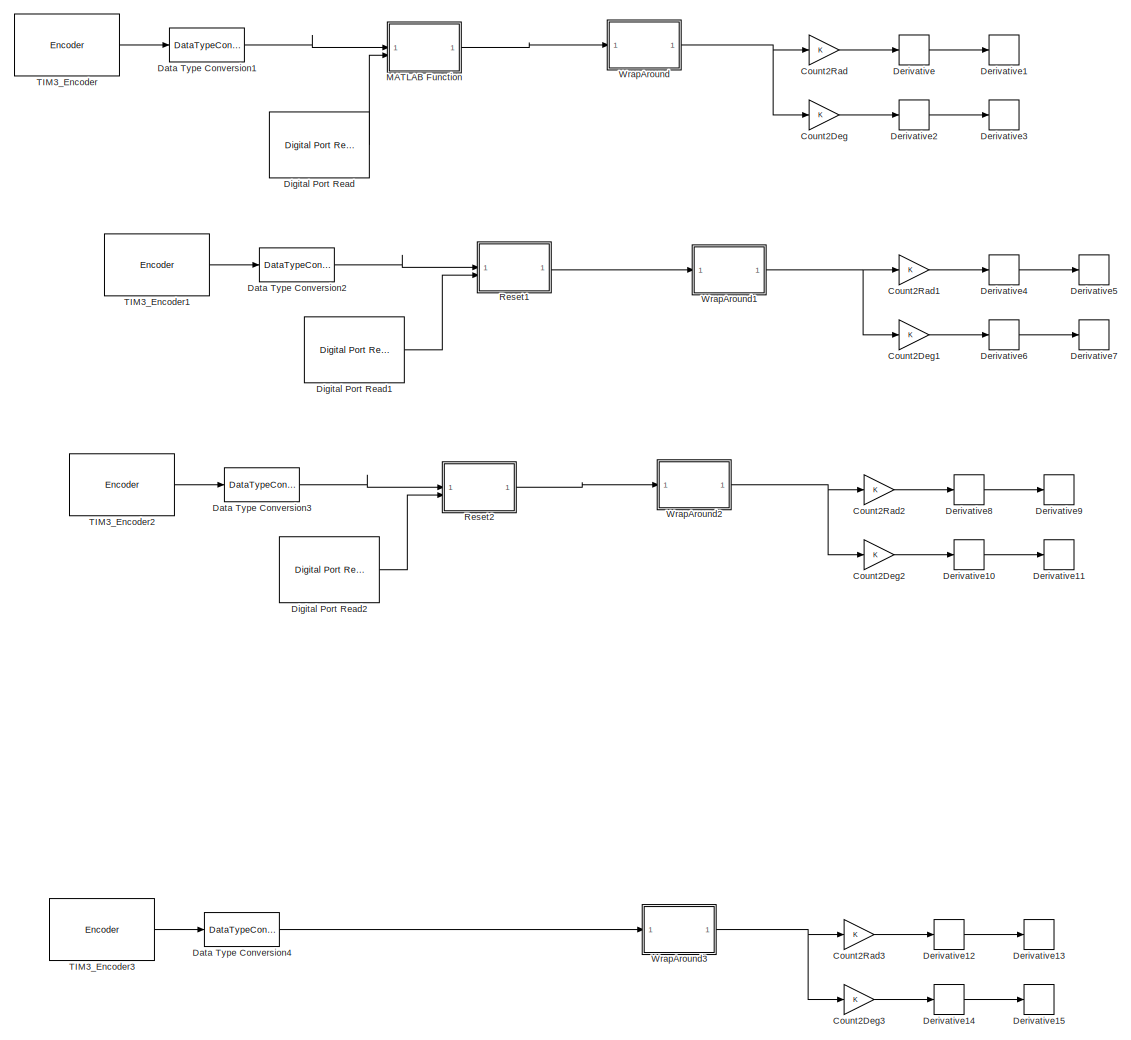
[diagram: root canvas - part 1/1, most of the canvas]
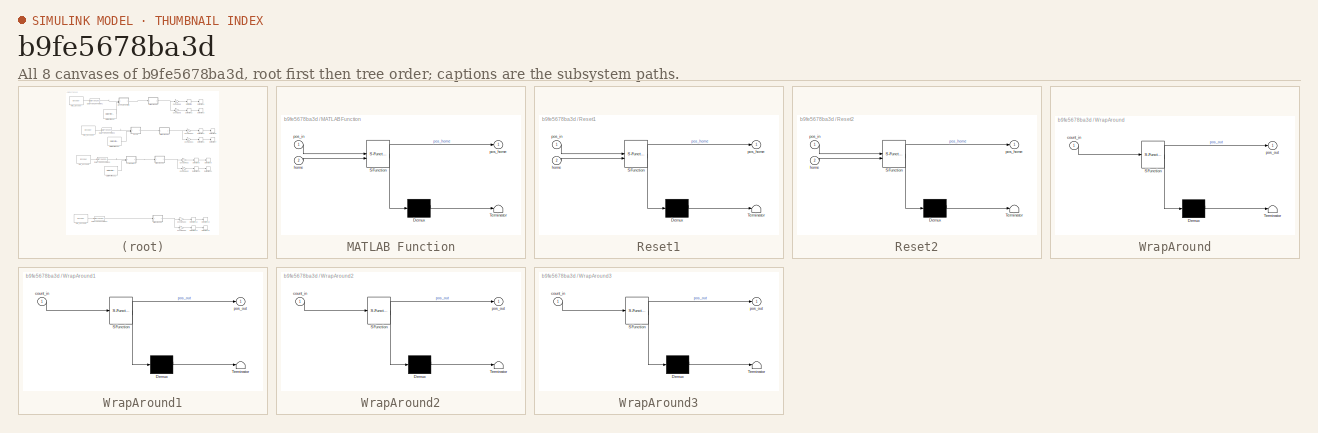
[diagram: thumbnail index - all 8 canvases of the model, root first then tree order]
MODEL slx_b9fe5678ba3d
KIND model
BLOCK [Gain] Count2Deg
BLOCK [Gain] Count2Deg1
BLOCK [Gain] Count2Deg2
BLOCK [Gain] Count2Deg3
  Commented = on
BLOCK [Gain] Count2Rad
BLOCK [Gain] Count2Rad1
BLOCK [Gain] Count2Rad2
BLOCK [Gain] Count2Rad3
  Commented = on
BLOCK [DataTypeConversion] Data Type Conversion1
  OutDataTypeStr = double
  RndMeth = Floor
  SaturateOnIntegerOverflow = off
BLOCK [DataTypeConversion] Data Type Conversion2
  OutDataTypeStr = double
  RndMeth = Floor
  SaturateOnIntegerOverflow = off
BLOCK [DataTypeConversion] Data Type Conversion3
  OutDataTypeStr = double
  RndMeth = Floor
  SaturateOnIntegerOverflow = off
BLOCK [DataTypeConversion] Data Type Conversion4
  Commented = on
  OutDataTypeStr = double
  RndMeth = Floor
  SaturateOnIntegerOverflow = off
BLOCK [Derivative] Derivative
BLOCK [Derivative] Derivative1
BLOCK [Derivative] Derivative10
BLOCK [Derivative] Derivative11
BLOCK [Derivative] Derivative12
  Commented = on
BLOCK [Derivative] Derivative13
  Commented = on
BLOCK [Derivative] Derivative14
  Commented = on
BLOCK [Derivative] Derivative15
  Commented = on
BLOCK [Derivative] Derivative2
BLOCK [Derivative] Derivative3
BLOCK [Derivative] Derivative4
BLOCK [Derivative] Derivative5
BLOCK [Derivative] Derivative6
BLOCK [Derivative] Derivative7
BLOCK [Derivative] Derivative8
BLOCK [Derivative] Derivative9
BLOCK [Reference] Digital Port Read  REF=stm32f4xxblockslib/Digital Port Read
  SourceBlock = stm32f4xxblockslib/Digital Port Read
  SourceType = stm32cube.blocks.DigitalPortRead
BLOCK [Reference] Digital Port Read1  REF=stm32f4xxblockslib/Digital Port Read
  SourceBlock = stm32f4xxblockslib/Digital Port Read
  SourceType = stm32cube.blocks.DigitalPortRead
BLOCK [Reference] Digital Port Read2  REF=stm32f4xxblockslib/Digital Port Read
  SourceBlock = stm32f4xxblockslib/Digital Port Read
  SourceType = stm32cube.blocks.DigitalPortRead
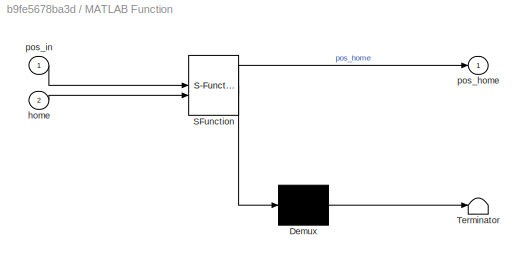
BLOCK [SubSystem] MATLAB Function
  ErrorFcn = Stateflow.Translate.translate
  PermitHierarchicalResolution = ExplicitOnly
  SFBlockType = MATLAB Function
  TreatAsAtomicUnit = on
BLOCK [Demux] MATLAB Function/ Demux 
  Outputs = 1
BLOCK [S-Function] MATLAB Function/ SFunction 
  EnableBusSupport = off
  FunctionName = sf_sfun
  PortCounts = [2 2]
  SFcnIsStateOwnerBlock = off
  SFunctionDeploymentMode = off
  Tag = Stateflow S-Function 1
BLOCK [Terminator] MATLAB Function/ Terminator 
BLOCK [Inport] MATLAB Function/home
  Port = 2
BLOCK [Outport] MATLAB Function/pos_home
BLOCK [Inport] MATLAB Function/pos_in
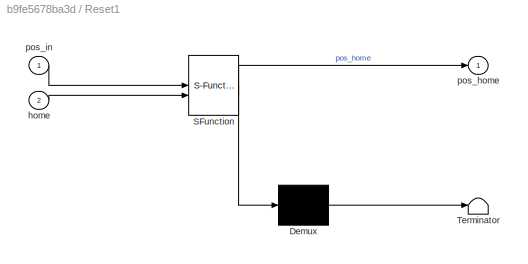
BLOCK [SubSystem] Reset1
  ErrorFcn = Stateflow.Translate.translate
  PermitHierarchicalResolution = ExplicitOnly
  SFBlockType = MATLAB Function
  TreatAsAtomicUnit = on
BLOCK [Demux] Reset1/ Demux 
  Outputs = 1
BLOCK [S-Function] Reset1/ SFunction 
  EnableBusSupport = off
  FunctionName = sf_sfun
  PortCounts = [2 2]
  SFcnIsStateOwnerBlock = off
  SFunctionDeploymentMode = off
  Tag = Stateflow S-Function 3
BLOCK [Terminator] Reset1/ Terminator 
BLOCK [Inport] Reset1/home
  Port = 2
BLOCK [Outport] Reset1/pos_home
BLOCK [Inport] Reset1/pos_in
BLOCK [SubSystem] Reset2
  ErrorFcn = Stateflow.Translate.translate
  PermitHierarchicalResolution = ExplicitOnly
  SFBlockType = MATLAB Function
  TreatAsAtomicUnit = on
BLOCK [Demux] Reset2/ Demux 
  Outputs = 1
BLOCK [S-Function] Reset2/ SFunction 
  EnableBusSupport = off
  FunctionName = sf_sfun
  PortCounts = [2 2]
  SFcnIsStateOwnerBlock = off
  SFunctionDeploymentMode = off
  Tag = Stateflow S-Function 5
BLOCK [Terminator] Reset2/ Terminator 
BLOCK [Inport] Reset2/home
  Port = 2
BLOCK [Outport] Reset2/pos_home
BLOCK [Inport] Reset2/pos_in
BLOCK [Reference] TIM3_Encoder  REF=stm32g4xxblockslib/Encoder
  SourceBlock = stm32g4xxblockslib/Encoder
  SourceType = stm32cube.blocks.EncoderBlockForG4
BLOCK [Reference] TIM3_Encoder1  REF=stm32g4xxblockslib/Encoder
  SourceBlock = stm32g4xxblockslib/Encoder
  SourceType = stm32cube.blocks.EncoderBlockForG4
BLOCK [Reference] TIM3_Encoder2  REF=stm32g4xxblockslib/Encoder
  SourceBlock = stm32g4xxblockslib/Encoder
  SourceType = stm32cube.blocks.EncoderBlockForG4
BLOCK [Reference] TIM3_Encoder3  REF=stm32g4xxblockslib/Encoder
  Commented = on
  SourceBlock = stm32g4xxblockslib/Encoder
  SourceType = stm32cube.blocks.EncoderBlockForG4
BLOCK [SubSystem] WrapAround
  ErrorFcn = Stateflow.Translate.translate
  PermitHierarchicalResolution = ExplicitOnly
  SFBlockType = MATLAB Function
  TreatAsAtomicUnit = on
BLOCK [Demux] WrapAround/ Demux 
  Outputs = 1
BLOCK [S-Function] WrapAround/ SFunction 
  EnableBusSupport = off
  FunctionName = sf_sfun
  PortCounts = [1 2]
  SFcnIsStateOwnerBlock = off
  SFunctionDeploymentMode = off
  Tag = Stateflow S-Function 2
BLOCK [Terminator] WrapAround/ Terminator 
BLOCK [Inport] WrapAround/count_in
BLOCK [Outport] WrapAround/pos_out
BLOCK [SubSystem] WrapAround1
  ErrorFcn = Stateflow.Translate.translate
  PermitHierarchicalResolution = ExplicitOnly
  SFBlockType = MATLAB Function
  TreatAsAtomicUnit = on
BLOCK [Demux] WrapAround1/ Demux 
  Outputs = 1
BLOCK [S-Function] WrapAround1/ SFunction 
  EnableBusSupport = off
  FunctionName = sf_sfun
  PortCounts = [1 2]
  SFcnIsStateOwnerBlock = off
  SFunctionDeploymentMode = off
  Tag = Stateflow S-Function 4
BLOCK [Terminator] WrapAround1/ Terminator 
BLOCK [Inport] WrapAround1/count_in
BLOCK [Outport] WrapAround1/pos_out
BLOCK [SubSystem] WrapAround2
  ErrorFcn = Stateflow.Translate.translate
  PermitHierarchicalResolution = ExplicitOnly
  SFBlockType = MATLAB Function
  TreatAsAtomicUnit = on
BLOCK [Demux] WrapAround2/ Demux 
  Outputs = 1
BLOCK [S-Function] WrapAround2/ SFunction 
  EnableBusSupport = off
  FunctionName = sf_sfun
  PortCounts = [1 2]
  SFcnIsStateOwnerBlock = off
  SFunctionDeploymentMode = off
  Tag = Stateflow S-Function 6
BLOCK [Terminator] WrapAround2/ Terminator 
BLOCK [Inport] WrapAround2/count_in
BLOCK [Outport] WrapAround2/pos_out
BLOCK [SubSystem] WrapAround3
  Commented = on
  ErrorFcn = Stateflow.Translate.translate
  PermitHierarchicalResolution = ExplicitOnly
  SFBlockType = MATLAB Function
  TreatAsAtomicUnit = on
BLOCK [Demux] WrapAround3/ Demux 
  Outputs = 1
BLOCK [S-Function] WrapAround3/ SFunction 
  EnableBusSupport = off
  FunctionName = sf_sfun
  PortCounts = [1 2]
  SFcnIsStateOwnerBlock = off
  SFunctionDeploymentMode = off
  Tag = Stateflow S-Function 8
BLOCK [Terminator] WrapAround3/ Terminator 
BLOCK [Inport] WrapAround3/count_in
BLOCK [Outport] WrapAround3/pos_out
LINE Count2Deg1:1 -> Derivative6:1
LINE Count2Deg2:1 -> Derivative10:1
LINE Count2Deg3:1 -> Derivative14:1
LINE Count2Deg:1 -> Derivative2:1
LINE Count2Rad1:1 -> Derivative4:1
LINE Count2Rad2:1 -> Derivative8:1
LINE Count2Rad3:1 -> Derivative12:1
LINE Count2Rad:1 -> Derivative:1
LINE Data Type Conversion1:1 -> MATLAB Function:1
LINE Data Type Conversion2:1 -> Reset1:1
LINE Data Type Conversion3:1 -> Reset2:1
LINE Data Type Conversion4:1 -> WrapAround3:1
LINE Derivative10:1 -> Derivative11:1
LINE Derivative12:1 -> Derivative13:1
LINE Derivative14:1 -> Derivative15:1
LINE Derivative2:1 -> Derivative3:1
LINE Derivative4:1 -> Derivative5:1
LINE Derivative6:1 -> Derivative7:1
LINE Derivative8:1 -> Derivative9:1
LINE Derivative:1 -> Derivative1:1
LINE Digital Port Read1:1 -> Reset1:2
LINE Digital Port Read2:1 -> Reset2:2
LINE Digital Port Read:1 -> MATLAB Function:2
LINE MATLAB Function:1 -> WrapAround:1
LINE Reset1:1 -> WrapAround1:1
LINE Reset2:1 -> WrapAround2:1
LINE TIM3_Encoder1:1 -> Data Type Conversion2:1
LINE TIM3_Encoder2:1 -> Data Type Conversion3:1
LINE TIM3_Encoder3:1 -> Data Type Conversion4:1
LINE TIM3_Encoder:1 -> Data Type Conversion1:1
NET WrapAround1:1 -> Count2Deg1:1, Count2Rad1:1
NET WrapAround2:1 -> Count2Deg2:1, Count2Rad2:1
NET WrapAround3:1 -> Count2Deg3:1, Count2Rad3:1
NET WrapAround:1 -> Count2Deg:1, Count2Rad:1
note: NET lines group one-source signal fan-out (src -> all destinations, sorted); 1:1 wires keep LINE
CHART WrapAround states=1 transitions=1
  STATE_LABEL 'eML_blk_kernel()'
  STATE_LABEL 'SCRIPT:\nfunction pos_out = WrapAround(count_in)\n%#codegen\n\n% --- ค่าคงที่ ---\nMAX_COUNT = 61439;   % จาก IOC Counter Period\nHALF_COUNT = MAX_COUNT / 2;\n\n% --- ตัวแปรคงอยู่ข้ามรอบ ---\npersistent old_count;\npersistent total_count;\n\nif isempty(old_count)\n    old_count = 0;\n    total_count = 0;\nend\n\n% --- คำนวณการเปลี่ยนแปลง ---\ndiff = count_in - old_count;\n\n% --- ตรวจจับการข้ามรอบ (Wrap-around) ---\ni...<+353ch>'  <repeated x3 — deduplicated; at blocks: WrapAround, WrapAround1, WrapAround2>
CHART Reset1 states=1 transitions=1
  STATE_LABEL 'eML_blk_kernel()'
  STATE_LABEL 'SCRIPT:\nfunction pos_home = Reset(pos_in, home)\n%#codegen\npersistent offset init\nif isempty(init)\n    offset = 0;\n    init = true;\nend\n\nif home == 1\n    offset = pos_in;\nend\n\npos_home = pos_in - offset;\n\nend\n'  <repeated x3 — deduplicated; at blocks: Reset1, Reset2, MATLAB Function>
CHART WrapAround1 states=1 transitions=1
  STATE_LABEL 'eML_blk_kernel()'
CHART Reset2 states=1 transitions=1
  STATE_LABEL 'eML_blk_kernel()'
CHART WrapAround2 states=1 transitions=1
  STATE_LABEL 'eML_blk_kernel()'
CHART WrapAround3 states=1 transitions=1
  STATE_LABEL 'eML_blk_kernel()'
  STATE_LABEL 'SCRIPT:\nfunction pos_out = WrapAround(count_in)\n%#codegen\n\n% --- ค่าคงที่ ---\nMAX_COUNT = 61439;   % จาก IOC Counter Period\nHALF_COUNT = MAX_COUNT / 2;\n\n% --- ตัวแปรคงอยู่ข้ามรอบ ---\npersistent old_count;\npersistent total_count;\n\nif isempty(old_count)\n    old_count = 0;\n    total_count = 0;\nend\n\n% --- คำนวณการเปลี่ยนแปลง ---\ndiff = count_in - old_count;\n\n% --- ตรวจจับการข้ามรอบ (Wrap-around) ---\ni...<+352ch>'
CHART MATLAB Function states=1 transitions=1
  STATE_LABEL 'eML_blk_kernel()'
CHART  states=0 transitions=0
CHART  states=0 transitions=0
CHART  states=0 transitions=0
CHART  states=0 transitions=0
CHART  states=0 transitions=0
CHART  states=0 transitions=0
CHART  states=0 transitions=0
